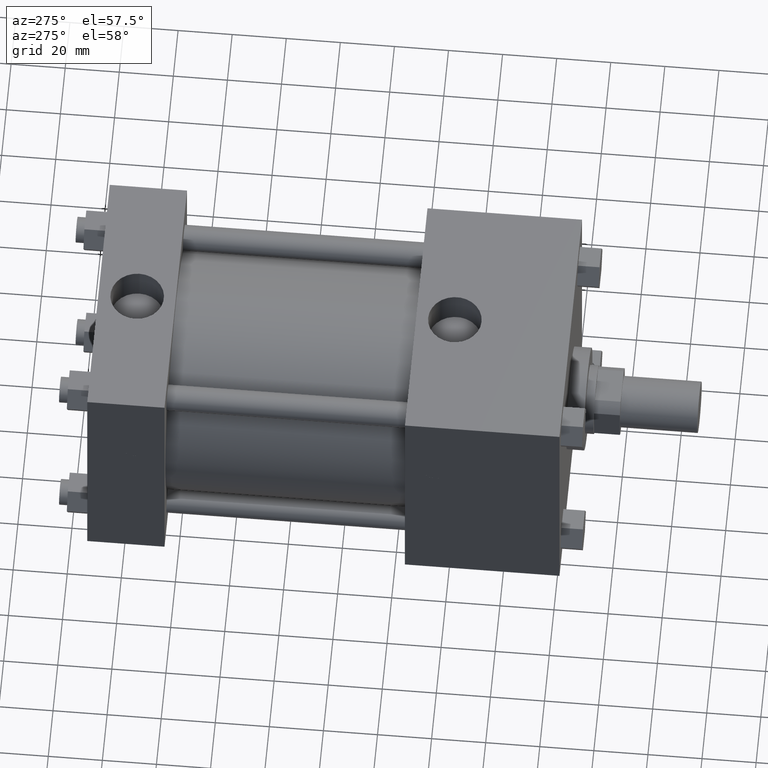
[diagram: clean part render]
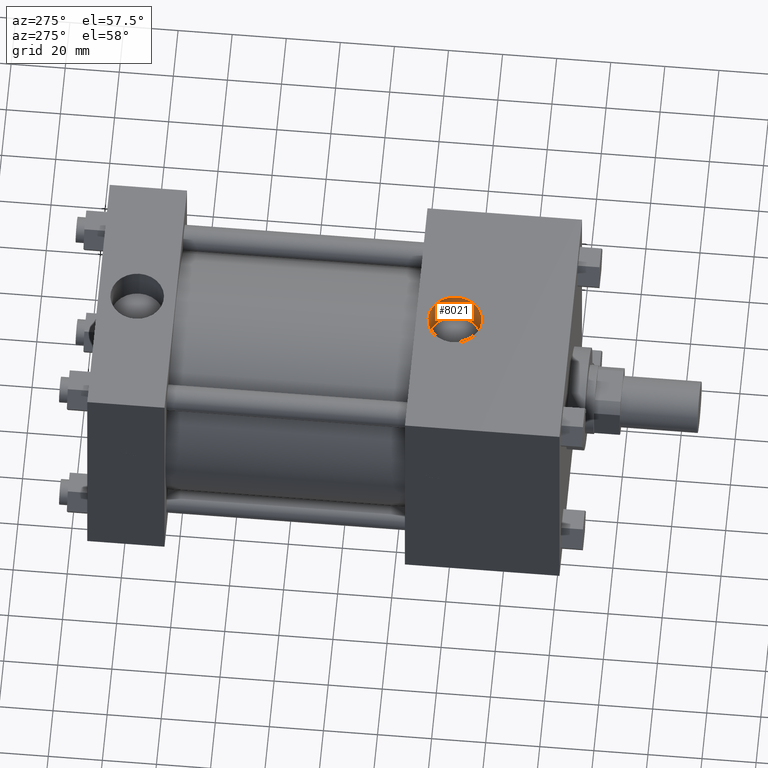
[diagram: same view with one face highlighted and labeled with its STEP entity id]
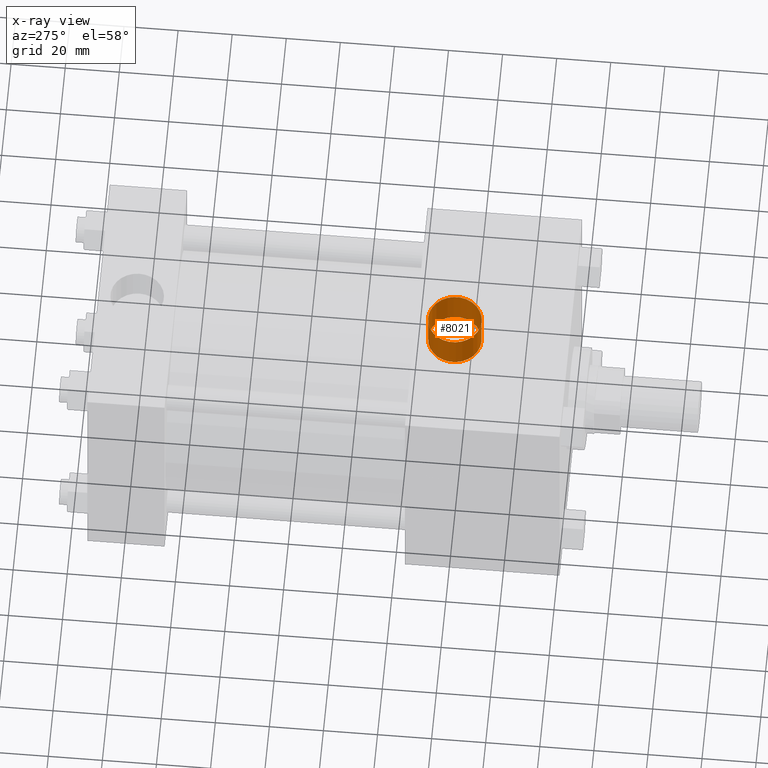
[diagram: x-ray of the same camera — body ghosted, the highlighted face saturated]
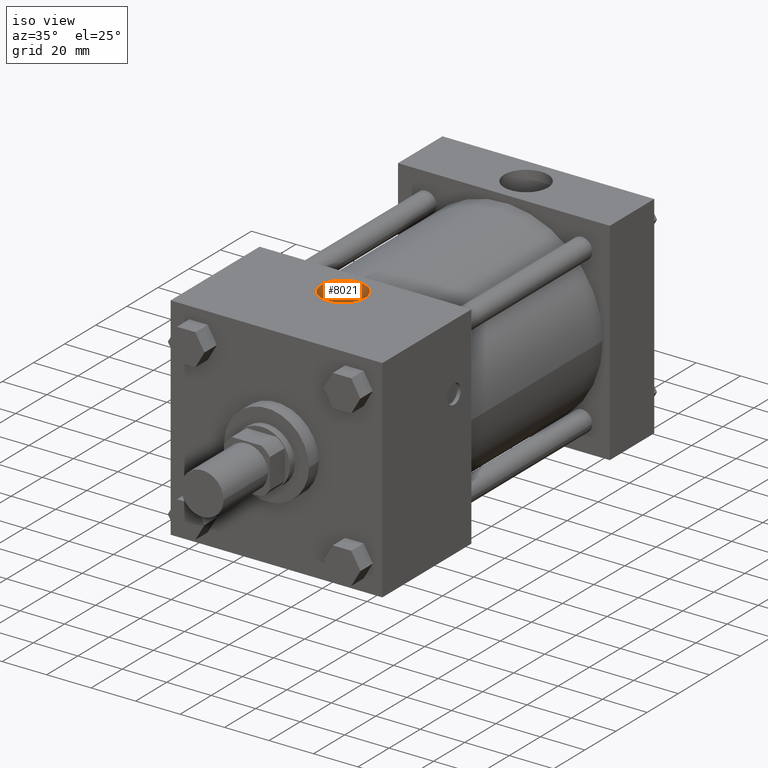
[diagram: same view with one face highlighted and labeled with its STEP entity id]
A machine part, auxiliary view. The second image highlights one B-rep face of the part: STEP entity #8021.
The next image is the same camera in x-ray: the body ghosted, the highlighted face saturated — about 0% of this face is hidden behind the body in this view.
A second angle (iso view) of the same face is appended — the face is thin or edge-on in the first view.
In plain terms, the highlighted cylindrical surface (bore or boss wall) has radius 9.8857 mm, axis along (0, 0, -1).
Its self-contained STEP definition (entity closure, byte-faithful):
#1797=FACE_OUTER_BOUND('',#1799,.T.);
#1798=FACE_BOUND('',#1800,.T.);
#1799=EDGE_LOOP('',(#1801));
#1800=EDGE_LOOP('',(#1810));
#1801=ORIENTED_EDGE('',*,*,#1802,.F.);
#1802=EDGE_CURVE('',#1808,#1808,#1803,.T.);
#1803=CIRCLE('',#1804,9.885680000E+000);
#1804=AXIS2_PLACEMENT_3D('',#1805,#1806,#1807);
#1805=CARTESIAN_POINT('',(0.000000000E+000,6.191250000E+001,3.406140000E+001));
#1806=DIRECTION('',(0.0E+000,0.0E+000,1.0E+000));
#1807=DIRECTION('',(0.0E+000,-1.0E+000,0.0E+000));
#1808=VERTEX_POINT('',#1809);
#1809=CARTESIAN_POINT('',(0.000000000E+000,5.202682000E+001,3.406140000E+001));
#1810=ORIENTED_EDGE('',*,*,#1811,.F.);
#1811=EDGE_CURVE('',#1817,#1817,#1812,.T.);
#1812=CIRCLE('',#1813,9.885680000E+000);
#1813=AXIS2_PLACEMENT_3D('',#1814,#1815,#1816);
#1814=CARTESIAN_POINT('',(0.000000000E+000,6.191250000E+001,4.762500000E+001));
#1815=DIRECTION('',(0.0E+000,0.0E+000,-1.0E+000));
#1816=DIRECTION('',(0.0E+000,-1.0E+000,0.0E+000));
#1817=VERTEX_POINT('',#1818);
#1818=CARTESIAN_POINT('',(0.000000000E+000,5.202682000E+001,4.762500000E+001));
#1819=CYLINDRICAL_SURFACE('',#1820,9.885680000E+000);
#1820=AXIS2_PLACEMENT_3D('',#1821,#1822,#1823);
#1821=CARTESIAN_POINT('',(0.000000000E+000,6.191250000E+001,4.762500000E+001));
#1822=DIRECTION('',(0.0E+000,0.0E+000,-1.0E+000));
#1823=DIRECTION('',(0.0E+000,-1.0E+000,0.0E+000));
#8021=ADVANCED_FACE('',(#1797,#1798),#1819,.F.);